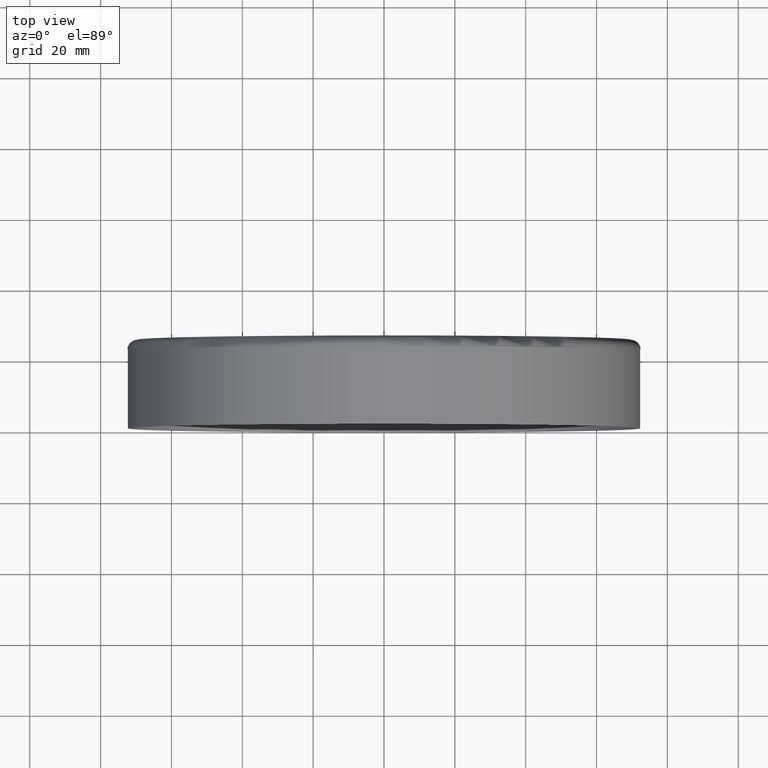
[diagram: clean part render]
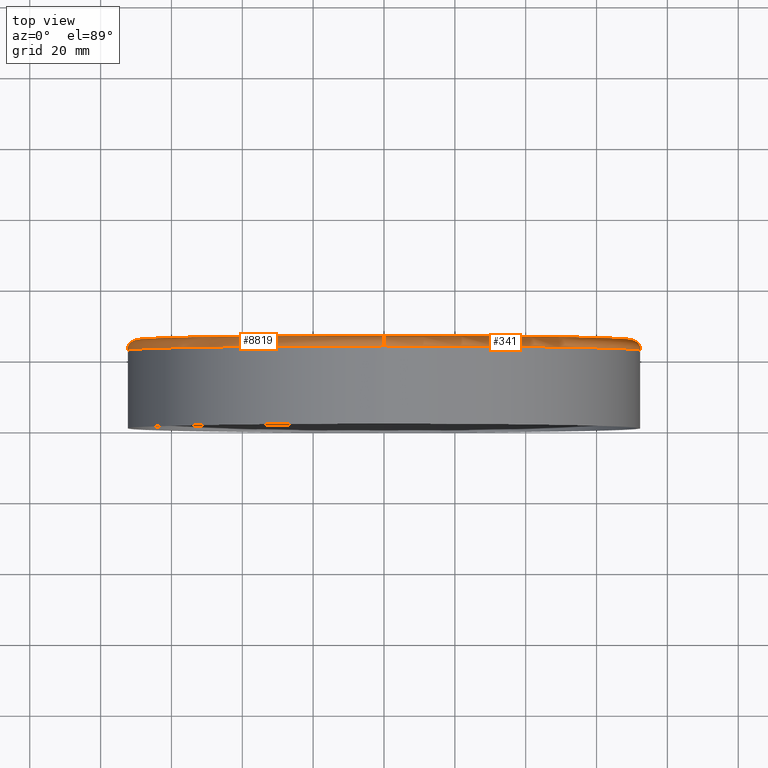
[diagram: same view with one multi-face feature highlighted, each face labeled with its STEP entity id]
A machine part, top view. The highlighted faces form ONE feature: a constant-radius fillet chain: 2 tangent blend faces with common blend radius 3 mm. The faces share edges in the B-rep.
Their STEP definitions:
[1] entity #8819 (Torus):
#15 = DIRECTION ( 'NONE',  ( 0.000000000000000000, 0.000000000000000000, -1.000000000000000000 ) ) ;
#872 = DIRECTION ( 'NONE',  ( 0.000000000000000000, 0.000000000000000000, -1.000000000000000000 ) ) ;
#1045 = ORIENTED_EDGE ( 'NONE', *, *, #11947, .T. ) ;
#1208 = VERTEX_POINT ( 'NONE', #6927 ) ;
#2365 = DIRECTION ( 'NONE',  ( 1.000000000000000000, 0.000000000000000000, -1.224646799147353207E-16 ) ) ;
#2509 = CARTESIAN_POINT ( 'NONE',  ( 0.000000000000000000, 25.00000000000000000, 0.000000000000000000 ) ) ;
#2556 = AXIS2_PLACEMENT_3D ( 'NONE', #11494, #9005, #3758 ) ;
#3135 = AXIS2_PLACEMENT_3D ( 'NONE', #2509, #12862, #15 ) ;
#3361 = AXIS2_PLACEMENT_3D ( 'NONE', #4991, #2365, #7638 ) ;
#3744 = CARTESIAN_POINT ( 'NONE',  ( 0.000000000000000000, 22.00000000000000355, 0.000000000000000000 ) ) ;
#3758 = DIRECTION ( 'NONE',  ( 0.000000000000000000, 0.000000000000000000, 1.000000000000000000 ) ) ;
#3837 = CIRCLE ( 'NONE', #2556, 3.000000000000002665 ) ;
#4251 = EDGE_CURVE ( 'NONE', #6454, #13092, #3837, .T. ) ;
#4431 = AXIS2_PLACEMENT_3D ( 'NONE', #3744, #7440, #10030 ) ;
#4991 = CARTESIAN_POINT ( 'NONE',  ( 8.511295254074103841E-15, 22.00000000000000355, 69.49999999999998579 ) ) ;
#5428 = VERTEX_POINT ( 'NONE', #10077 ) ;
#5968 = DIRECTION ( 'NONE',  ( -0.000000000000000000, -1.000000000000000000, -0.000000000000000000 ) ) ;
#6454 = VERTEX_POINT ( 'NONE', #9223 ) ;
#6765 = CIRCLE ( 'NONE', #14282, 72.50000000000000000 ) ;
#6927 = CARTESIAN_POINT ( 'NONE',  ( 8.694992273946206563E-15, 25.00000000000000000, 69.49999999999998579 ) ) ;
#7440 = DIRECTION ( 'NONE',  ( -0.000000000000000000, -1.000000000000000000, -0.000000000000000000 ) ) ;
#7638 = DIRECTION ( 'NONE',  ( -1.224646799147354440E-16, 0.000000000000000000, -1.000000000000000000 ) ) ;
#8390 = CIRCLE ( 'NONE', #3361, 3.000000000000002665 ) ;
#8803 = CIRCLE ( 'NONE', #3135, 69.49999999999998579 ) ;
#8819 = ADVANCED_FACE ( 'NONE', ( #15725 ), #9035, .T. ) ;
#8978 = ORIENTED_EDGE ( 'NONE', *, *, #4251, .T. ) ;
#9005 = DIRECTION ( 'NONE',  ( -1.000000000000000000, 0.000000000000000000, 0.000000000000000000 ) ) ;
#9035 = TOROIDAL_SURFACE ( 'NONE', #4431, 69.49999999999998579, 3.000000000000000888 ) ;
#9223 = CARTESIAN_POINT ( 'NONE',  ( 0.000000000000000000, 25.00000000000000000, -69.49999999999998579 ) ) ;
#10030 = DIRECTION ( 'NONE',  ( 0.000000000000000000, 0.000000000000000000, -1.000000000000000000 ) ) ;
#10077 = CARTESIAN_POINT ( 'NONE',  ( 8.878689293818309285E-15, 22.00000000000000355, 72.50000000000000000 ) ) ;
#10375 = EDGE_LOOP ( 'NONE', ( #12814, #1045, #8978, #15133 ) ) ;
#11494 = CARTESIAN_POINT ( 'NONE',  ( 0.000000000000000000, 22.00000000000000355, -69.49999999999998579 ) ) ;
#11947 = EDGE_CURVE ( 'NONE', #1208, #6454, #8803, .T. ) ;
#12814 = ORIENTED_EDGE ( 'NONE', *, *, #14408, .F. ) ;
#12862 = DIRECTION ( 'NONE',  ( -0.000000000000000000, -1.000000000000000000, -0.000000000000000000 ) ) ;
#13092 = VERTEX_POINT ( 'NONE', #13237 ) ;
#13237 = CARTESIAN_POINT ( 'NONE',  ( 0.000000000000000000, 22.00000000000000355, -72.50000000000000000 ) ) ;
#13698 = CARTESIAN_POINT ( 'NONE',  ( 0.000000000000000000, 22.00000000000000355, 0.000000000000000000 ) ) ;
#14045 = EDGE_CURVE ( 'NONE', #5428, #13092, #6765, .T. ) ;
#14282 = AXIS2_PLACEMENT_3D ( 'NONE', #13698, #5968, #872 ) ;
#14408 = EDGE_CURVE ( 'NONE', #1208, #5428, #8390, .T. ) ;
#15133 = ORIENTED_EDGE ( 'NONE', *, *, #14045, .F. ) ;
#15725 = FACE_OUTER_BOUND ( 'NONE', #10375, .T. ) ;
[2] entity #341 (Torus):
#341 = ADVANCED_FACE ( 'NONE', ( #1472 ), #11393, .T. ) ;
#1208 = VERTEX_POINT ( 'NONE', #6927 ) ;
#1472 = FACE_OUTER_BOUND ( 'NONE', #7315, .T. ) ;
#2365 = DIRECTION ( 'NONE',  ( 1.000000000000000000, 0.000000000000000000, -1.224646799147353207E-16 ) ) ;
#2556 = AXIS2_PLACEMENT_3D ( 'NONE', #11494, #9005, #3758 ) ;
#2764 = DIRECTION ( 'NONE',  ( 0.000000000000000000, 0.000000000000000000, -1.000000000000000000 ) ) ;
#3068 = CARTESIAN_POINT ( 'NONE',  ( 0.000000000000000000, 22.00000000000000355, 0.000000000000000000 ) ) ;
#3361 = AXIS2_PLACEMENT_3D ( 'NONE', #4991, #2365, #7638 ) ;
#3758 = DIRECTION ( 'NONE',  ( 0.000000000000000000, 0.000000000000000000, 1.000000000000000000 ) ) ;
#3837 = CIRCLE ( 'NONE', #2556, 3.000000000000002665 ) ;
#4154 = DIRECTION ( 'NONE',  ( 0.000000000000000000, 0.000000000000000000, -1.000000000000000000 ) ) ;
#4251 = EDGE_CURVE ( 'NONE', #6454, #13092, #3837, .T. ) ;
#4636 = AXIS2_PLACEMENT_3D ( 'NONE', #3068, #10823, #4154 ) ;
#4991 = CARTESIAN_POINT ( 'NONE',  ( 8.511295254074103841E-15, 22.00000000000000355, 69.49999999999998579 ) ) ;
#5061 = ORIENTED_EDGE ( 'NONE', *, *, #5270, .F. ) ;
#5270 = EDGE_CURVE ( 'NONE', #13092, #5428, #5665, .T. ) ;
#5428 = VERTEX_POINT ( 'NONE', #10077 ) ;
#5665 = CIRCLE ( 'NONE', #4636, 72.50000000000000000 ) ;
#6454 = VERTEX_POINT ( 'NONE', #9223 ) ;
#6614 = DIRECTION ( 'NONE',  ( -0.000000000000000000, -1.000000000000000000, -0.000000000000000000 ) ) ;
#6697 = DIRECTION ( 'NONE',  ( 0.000000000000000000, 0.000000000000000000, -1.000000000000000000 ) ) ;
#6927 = CARTESIAN_POINT ( 'NONE',  ( 8.694992273946206563E-15, 25.00000000000000000, 69.49999999999998579 ) ) ;
#7315 = EDGE_LOOP ( 'NONE', ( #11567, #13081, #5061, #7760 ) ) ;
#7638 = DIRECTION ( 'NONE',  ( -1.224646799147354440E-16, 0.000000000000000000, -1.000000000000000000 ) ) ;
#7760 = ORIENTED_EDGE ( 'NONE', *, *, #4251, .F. ) ;
#8184 = CIRCLE ( 'NONE', #14855, 69.49999999999998579 ) ;
#8390 = CIRCLE ( 'NONE', #3361, 3.000000000000002665 ) ;
#9005 = DIRECTION ( 'NONE',  ( -1.000000000000000000, 0.000000000000000000, 0.000000000000000000 ) ) ;
#9223 = CARTESIAN_POINT ( 'NONE',  ( 0.000000000000000000, 25.00000000000000000, -69.49999999999998579 ) ) ;
#10077 = CARTESIAN_POINT ( 'NONE',  ( 8.878689293818309285E-15, 22.00000000000000355, 72.50000000000000000 ) ) ;
#10823 = DIRECTION ( 'NONE',  ( -0.000000000000000000, -1.000000000000000000, -0.000000000000000000 ) ) ;
#11393 = TOROIDAL_SURFACE ( 'NONE', #13253, 69.49999999999998579, 3.000000000000000888 ) ;
#11494 = CARTESIAN_POINT ( 'NONE',  ( 0.000000000000000000, 22.00000000000000355, -69.49999999999998579 ) ) ;
#11567 = ORIENTED_EDGE ( 'NONE', *, *, #15277, .T. ) ;
#11693 = CARTESIAN_POINT ( 'NONE',  ( 0.000000000000000000, 25.00000000000000000, 0.000000000000000000 ) ) ;
#11998 = DIRECTION ( 'NONE',  ( -0.000000000000000000, -1.000000000000000000, -0.000000000000000000 ) ) ;
#13081 = ORIENTED_EDGE ( 'NONE', *, *, #14408, .T. ) ;
#13092 = VERTEX_POINT ( 'NONE', #13237 ) ;
#13237 = CARTESIAN_POINT ( 'NONE',  ( 0.000000000000000000, 22.00000000000000355, -72.50000000000000000 ) ) ;
#13253 = AXIS2_PLACEMENT_3D ( 'NONE', #14436, #11998, #6697 ) ;
#14408 = EDGE_CURVE ( 'NONE', #1208, #5428, #8390, .T. ) ;
#14436 = CARTESIAN_POINT ( 'NONE',  ( 0.000000000000000000, 22.00000000000000355, 0.000000000000000000 ) ) ;
#14855 = AXIS2_PLACEMENT_3D ( 'NONE', #11693, #6614, #2764 ) ;
#15277 = EDGE_CURVE ( 'NONE', #6454, #1208, #8184, .T. ) ;